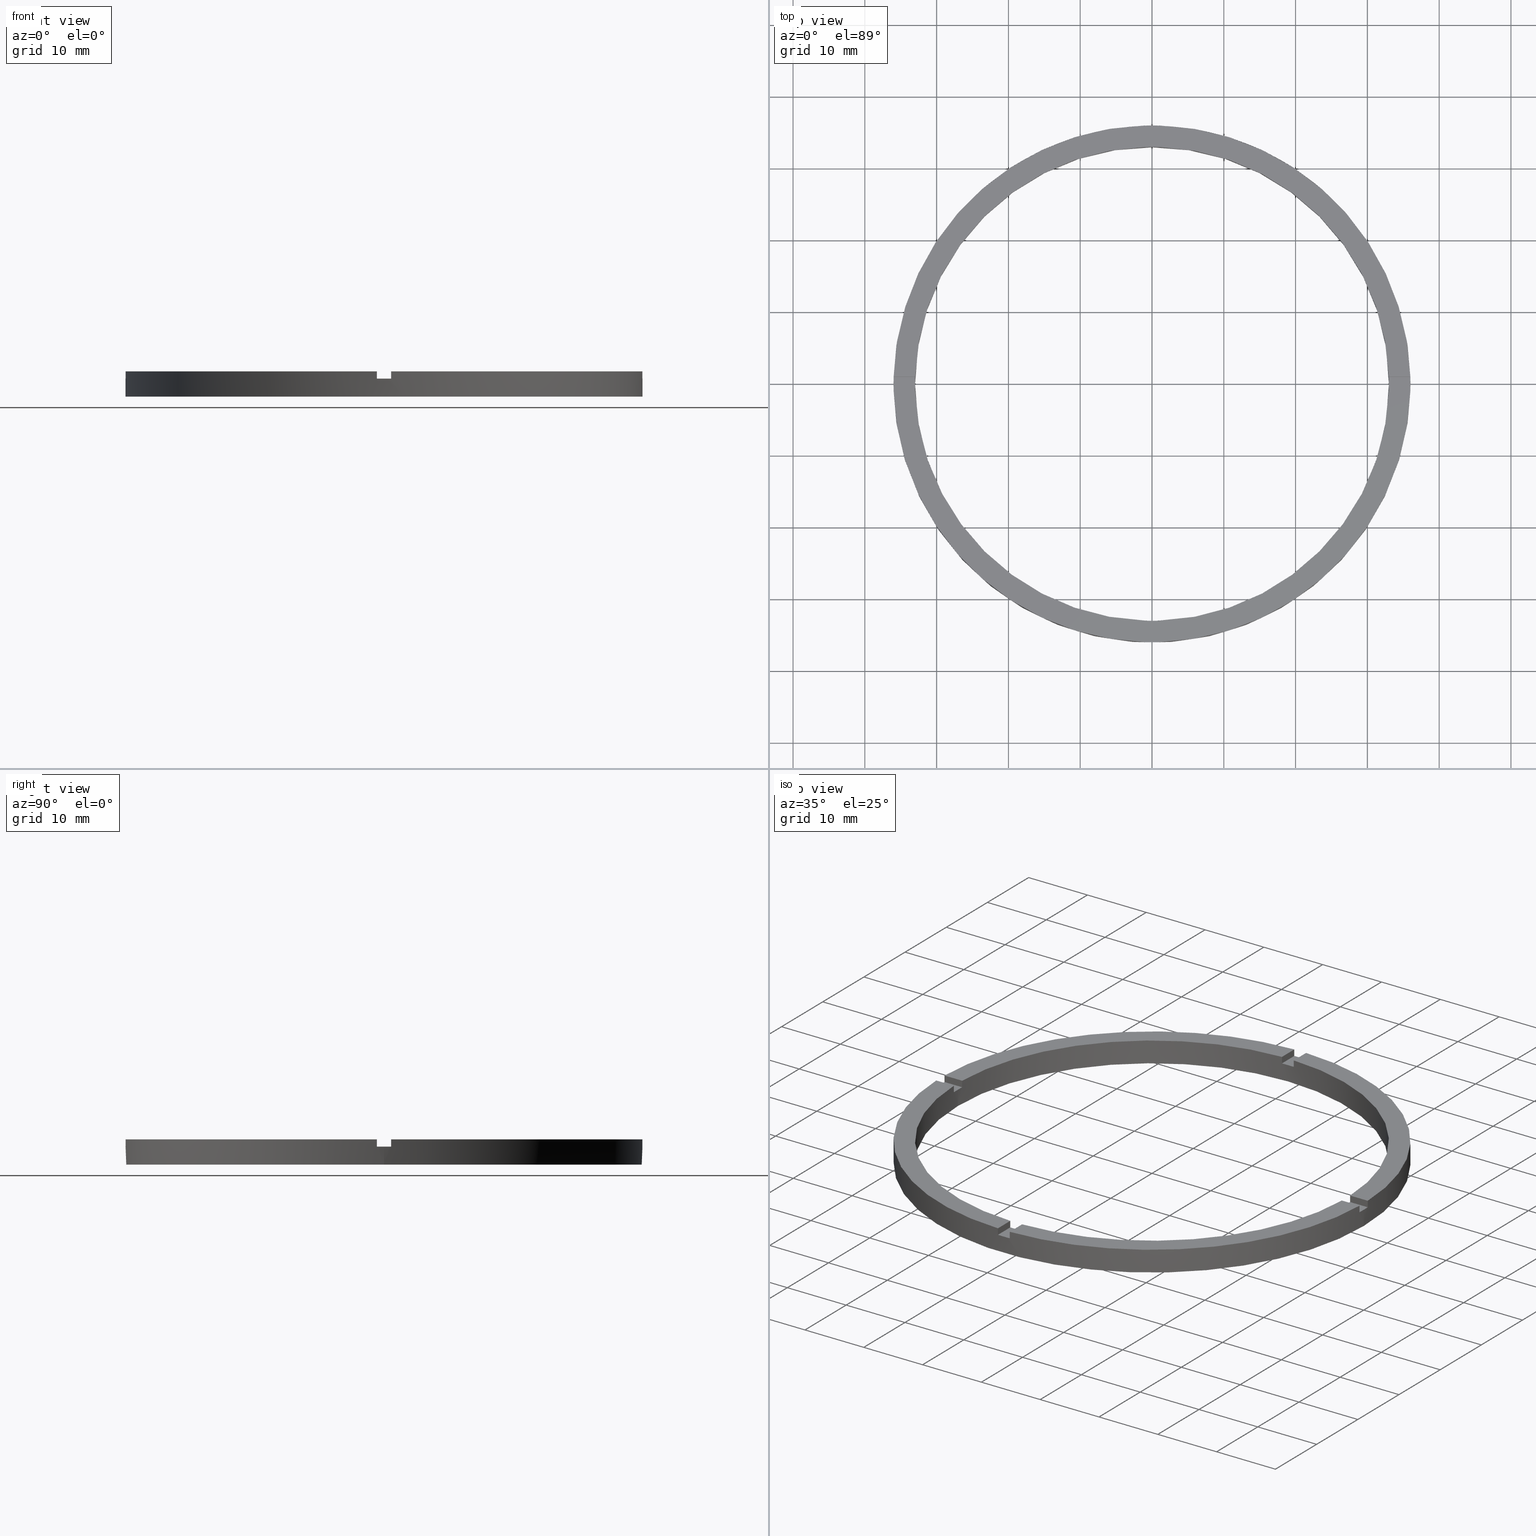
[diagram: canonical four-view strip — front | top / right | iso, engineering-drawing reading convention]
A machine part, canonical four-view strip (front | top / right | iso — engineering-drawing reading convention). The complete STEP part file that produces these views, byte-faithful:
ISO-10303-21;
HEADER;
FILE_DESCRIPTION (( 'STEP AP203' ),
    '1' );
FILE_NAME ('514149.step',
    '2024-12-26T02:42:16',
    ( 'MSI' ),
    ( '' ),
    'SwSTEP 2.0',
    'SolidWorks 2020',
    '' );
FILE_SCHEMA (( 'CONFIG_CONTROL_DESIGN' ));
ENDSEC;

DATA;
#1 = CARTESIAN_POINT ( 'NONE',  ( 0.000000000000000000, 0.000000000000000000, 2.500000000000000000 ) ) ;
#2 = CARTESIAN_POINT ( 'NONE',  ( 0.000000000000000000, 0.000000000000000000, 0.000000000000000000 ) ) ;
#3 = APPROVAL ( #214, 'δָ��' ) ;
#4 = CARTESIAN_POINT ( 'NONE',  ( 0.000000000000000000, 0.000000000000000000, 2.500000000000000000 ) ) ;
#5 = PRODUCT ( '514149', '514149', '', ( #523 ) ) ;
#6 = ADVANCED_FACE ( 'NONE', ( #406 ), #353, .T. ) ;
#7 = CARTESIAN_POINT ( 'NONE',  ( 0.000000000000000000, 0.000000000000000000, 2.500000000000000000 ) ) ;
#8 = CC_DESIGN_PERSON_AND_ORGANIZATION_ASSIGNMENT ( #73, #283, ( #157 ) ) ;
#9 = EDGE_CURVE ( 'NONE', #77, #732, #143, .T. ) ;
#10 = UNCERTAINTY_MEASURE_WITH_UNIT (LENGTH_MEASURE( 1.000000000000000082E-05 ), #735, 'distance_accuracy_value', 'NONE');
#11 = CARTESIAN_POINT ( 'NONE',  ( 0.000000000000000000, 0.000000000000000000, 2.500000000000000000 ) ) ;
#12 = EDGE_CURVE ( 'NONE', #607, #392, #662, .T. ) ;
#13 = DIRECTION ( 'NONE',  ( -1.000000000000000000, 0.000000000000000000, 0.000000000000000000 ) ) ;
#14 = AXIS2_PLACEMENT_3D ( 'NONE', #195, #520, #364 ) ;
#15 = EDGE_CURVE ( 'NONE', #132, #607, #666, .T. ) ;
#16 = VECTOR ( 'NONE', #572, 1000.000000000000000 ) ;
#17 = ORIENTED_EDGE ( 'NONE', *, *, #349, .T. ) ;
#18 = VECTOR ( 'NONE', #714, 1000.000000000000000 ) ;
#19 = DIRECTION ( 'NONE',  ( -1.000000000000000000, -6.505213034913025371E-17, -0.000000000000000000 ) ) ;
#20 = ORIENTED_EDGE ( 'NONE', *, *, #766, .T. ) ;
#21 = CIRCLE ( 'NONE', #187, 33.00000000000000000 ) ;
#22 = ORIENTED_EDGE ( 'NONE', *, *, #419, .T. ) ;
#23 = VECTOR ( 'NONE', #241, 1000.000000000000000 ) ;
#24 = ORIENTED_EDGE ( 'NONE', *, *, #15, .T. ) ;
#25 = PRODUCT_DEFINITION_SHAPE ( 'NONE', 'NONE',  #207 ) ;
#26 = LINE ( 'NONE', #672, #29 ) ;
#27 = ORIENTED_EDGE ( 'NONE', *, *, #135, .F. ) ;
#28 = ADVANCED_FACE ( 'NONE', ( #671 ), #126, .T. ) ;
#29 = VECTOR ( 'NONE', #751, 1000.000000000000000 ) ;
#30 = CARTESIAN_POINT ( 'NONE',  ( 0.000000000000000000, 0.000000000000000000, 3.500000000000000000 ) ) ;
#31 = CARTESIAN_POINT ( 'NONE',  ( -1.000000000000025091, 32.98484500494128469, 3.500000000000000000 ) ) ;
#32 = ORIENTED_EDGE ( 'NONE', *, *, #135, .T. ) ;
#33 = ORIENTED_EDGE ( 'NONE', *, *, #616, .T. ) ;
#34 = DIRECTION ( 'NONE',  ( 0.000000000000000000, 0.000000000000000000, 1.000000000000000000 ) ) ;
#35 = ORIENTED_EDGE ( 'NONE', *, *, #429, .T. ) ;
#36 = VERTEX_POINT ( 'NONE', #413 ) ;
#37 = ORIENTED_EDGE ( 'NONE', *, *, #624, .T. ) ;
#38 = DIRECTION ( 'NONE',  ( 0.000000000000000000, 0.000000000000000000, 1.000000000000000000 ) ) ;
#39 = SECURITY_CLASSIFICATION_LEVEL ( 'unclassified' ) ;
#40 = EDGE_CURVE ( 'NONE', #383, #122, #649, .T. ) ;
#41 = CIRCLE ( 'NONE', #262, 33.00000000000000000 ) ;
#42 = DIRECTION ( 'NONE',  ( 0.000000000000000000, 0.000000000000000000, 1.000000000000000000 ) ) ;
#43 = DIRECTION ( 'NONE',  ( -0.000000000000000000, -0.000000000000000000, -1.000000000000000000 ) ) ;
#44 = CARTESIAN_POINT ( 'NONE',  ( 0.000000000000000000, 0.000000000000000000, 0.000000000000000000 ) ) ;
#45 = VERTEX_POINT ( 'NONE', #705 ) ;
#46 = EDGE_LOOP ( 'NONE', ( #320, #276, #325, #119, #35, #580, #115, #684, #289, #659, #664, #285 ) ) ;
#47 = AXIS2_PLACEMENT_3D ( 'NONE', #1, #205, #309 ) ;
#48 = CARTESIAN_POINT ( 'NONE',  ( 0.000000000000000000, 0.000000000000000000, 3.500000000000000000 ) ) ;
#49 = FACE_OUTER_BOUND ( 'NONE', #682, .T. ) ;
#50 = DIRECTION ( 'NONE',  ( 1.301042606982605074E-16, -1.000000000000000000, 0.000000000000000000 ) ) ;
#51 = VECTOR ( 'NONE', #38, 1000.000000000000000 ) ;
#52 = ORIENTED_EDGE ( 'NONE', *, *, #240, .T. ) ;
#53 = EDGE_CURVE ( 'NONE', #398, #396, #130, .T. ) ;
#54 = APPROVAL_PERSON_ORGANIZATION ( #301, #3, #579 ) ;
#55 = CIRCLE ( 'NONE', #230, 33.00000000000000000 ) ;
#56 = VECTOR ( 'NONE', #558, 1000.000000000000000 ) ;
#57 = ORIENTED_EDGE ( 'NONE', *, *, #103, .F. ) ;
#58 = PERSON_AND_ORGANIZATION_ROLE ( 'design_owner' ) ;
#59 = PLANE ( 'NONE',  #495 ) ;
#60 = LINE ( 'NONE', #779, #311 ) ;
#61 = VECTOR ( 'NONE', #423, 1000.000000000000000 ) ;
#62 = PLANE ( 'NONE',  #215 ) ;
#63 = EDGE_CURVE ( 'NONE', #549, #300, #676, .T. ) ;
#64 = LINE ( 'NONE', #729, #570 ) ;
#65 = DIRECTION ( 'NONE',  ( 1.000000000000000000, 0.000000000000000000, 0.000000000000000000 ) ) ;
#66 = APPROVAL_DATE_TIME ( #350, #763 ) ;
#67 = CALENDAR_DATE ( 2024, 26, 12 ) ;
#68 = ORIENTED_EDGE ( 'NONE', *, *, #534, .F. ) ;
#69 = ORIENTED_EDGE ( 'NONE', *, *, #750, .F. ) ;
#70 = DIRECTION ( 'NONE',  ( -1.000000000000000000, 0.000000000000000000, 0.000000000000000000 ) ) ;
#71 = AXIS2_PLACEMENT_3D ( 'NONE', #265, #156, #474 ) ;
#72 = PERSON_AND_ORGANIZATION ( #674, #299 ) ;
#73 = PERSON_AND_ORGANIZATION ( #674, #299 ) ;
#74 = DIRECTION ( 'NONE',  ( 1.000000000000000000, 0.000000000000000000, -0.000000000000000000 ) ) ;
#75 = ORIENTED_EDGE ( 'NONE', *, *, #15, .F. ) ;
#76 = CC_DESIGN_PERSON_AND_ORGANIZATION_ASSIGNMENT ( #613, #530, ( #157 ) ) ;
#77 = VERTEX_POINT ( 'NONE', #257 ) ;
#78 = DATE_AND_TIME ( #90, #584 ) ;
#79 = EDGE_LOOP ( 'NONE', ( #757, #287 ) ) ;
#80 = PERSON_AND_ORGANIZATION ( #674, #299 ) ;
#81 = ADVANCED_FACE ( 'NONE', ( #425 ), #235, .F. ) ;
#82 = DIRECTION ( 'NONE',  ( -0.000000000000000000, -0.000000000000000000, -1.000000000000000000 ) ) ;
#83 = PRODUCT_RELATED_PRODUCT_CATEGORY ( 'detail', '', ( #5 ) ) ;
#84 = MANIFOLD_SOLID_BREP ( '�г�-����1', #409 ) ;
#85 = DATE_AND_TIME ( #601, #340 ) ;
#86 = ORIENTED_EDGE ( 'NONE', *, *, #189, .T. ) ;
#87 = EDGE_CURVE ( 'NONE', #77, #463, #399, .T. ) ;
#88 = PLANE ( 'NONE',  #667 ) ;
#89 = DIRECTION ( 'NONE',  ( 0.000000000000000000, 0.000000000000000000, 1.000000000000000000 ) ) ;
#90 = CALENDAR_DATE ( 2024, 26, 12 ) ;
#91 = COORDINATED_UNIVERSAL_TIME_OFFSET ( 8, 0, .AHEAD. ) ;
#92 = DATE_AND_TIME ( #67, #332 ) ;
#93 = DIRECTION ( 'NONE',  ( 0.000000000000000000, 0.000000000000000000, 1.000000000000000000 ) ) ;
#94 = DIRECTION ( 'NONE',  ( 1.000000000000000000, 1.301042606982605074E-16, 0.000000000000000000 ) ) ;
#95 = AXIS2_PLACEMENT_3D ( 'NONE', #566, #239, #721 ) ;
#96 = AXIS2_PLACEMENT_3D ( 'NONE', #745, #447, #781 ) ;
#97 = ORIENTED_EDGE ( 'NONE', *, *, #179, .T. ) ;
#98 = DIRECTION ( 'NONE',  ( 1.000000000000000000, 0.000000000000000000, 0.000000000000000000 ) ) ;
#99 = DIRECTION ( 'NONE',  ( 0.000000000000000000, 0.000000000000000000, 1.000000000000000000 ) ) ;
#100 = DIRECTION ( 'NONE',  ( 1.000000000000000000, 0.000000000000000000, 0.000000000000000000 ) ) ;
#101 = ORIENTED_EDGE ( 'NONE', *, *, #489, .F. ) ;
#102 = ORIENTED_EDGE ( 'NONE', *, *, #297, .T. ) ;
#103 = EDGE_CURVE ( 'NONE', #736, #645, #144, .T. ) ;
#104 = ORIENTED_EDGE ( 'NONE', *, *, #766, .F. ) ;
#105 = ORIENTED_EDGE ( 'NONE', *, *, #264, .T. ) ;
#106 = EDGE_LOOP ( 'NONE', ( #312, #97, #626, #57, #562, #564, #357, #206, #733, #385, #360, #104 ) ) ;
#107 = CARTESIAN_POINT ( 'NONE',  ( -1.000000000000160760, -32.98484500494128469, 3.500000000000000000 ) ) ;
#108 = VERTEX_POINT ( 'NONE', #165 ) ;
#109 = APPROVAL_STATUS ( 'not_yet_approved' ) ;
#110 = EDGE_LOOP ( 'NONE', ( #690, #477, #465, #559, #730, #86 ) ) ;
#111 = ORIENTED_EDGE ( 'NONE', *, *, #338, .F. ) ;
#112 = ORIENTED_EDGE ( 'NONE', *, *, #518, .T. ) ;
#113 = ORIENTED_EDGE ( 'NONE', *, *, #478, .F. ) ;
#114 = CARTESIAN_POINT ( 'NONE',  ( 0.000000000000000000, 0.000000000000000000, 3.500000000000000000 ) ) ;
#115 = ORIENTED_EDGE ( 'NONE', *, *, #489, .T. ) ;
#116 = APPLICATION_CONTEXT ( 'configuration controlled 3d designs of mechanical parts and assemblies' ) ;
#117 = AXIS2_PLACEMENT_3D ( 'NONE', #599, #210, #494 ) ;
#118 = DIRECTION ( 'NONE',  ( 1.000000000000000000, 0.000000000000000000, 0.000000000000000000 ) ) ;
#119 = ORIENTED_EDGE ( 'NONE', *, *, #40, .F. ) ;
#120 = DIRECTION ( 'NONE',  ( 1.000000000000000000, 0.000000000000000000, 0.000000000000000000 ) ) ;
#121 = CARTESIAN_POINT ( 'NONE',  ( 0.000000000000000000, 0.000000000000000000, 3.500000000000000000 ) ) ;
#122 = VERTEX_POINT ( 'NONE', #765 ) ;
#123 = DIRECTION ( 'NONE',  ( 1.000000000000000000, 0.000000000000000000, -0.000000000000000000 ) ) ;
#124 = CARTESIAN_POINT ( 'NONE',  ( -36.00000000000000000, 0.000000000000000000, 2.500000000000000000 ) ) ;
#125 = CC_DESIGN_PERSON_AND_ORGANIZATION_ASSIGNMENT ( #72, #435, ( #709 ) ) ;
#126 = CYLINDRICAL_SURFACE ( 'NONE', #760, 36.00000000000000000 ) ;
#127 = ORIENTED_EDGE ( 'NONE', *, *, #616, .F. ) ;
#128 = EDGE_LOOP ( 'NONE', ( #738, #213, #319, #203 ) ) ;
#129 = DIRECTION ( 'NONE',  ( -1.000000000000000000, -1.951563910473907735E-16, 0.000000000000000000 ) ) ;
#130 = CIRCLE ( 'NONE', #71, 36.00000000000000000 ) ;
#131 = ADVANCED_FACE ( 'NONE', ( #146 ), #568, .T. ) ;
#132 = VERTEX_POINT ( 'NONE', #31 ) ;
#133 = AXIS2_PLACEMENT_3D ( 'NONE', #48, #363, #120 ) ;
#134 = ORIENTED_EDGE ( 'NONE', *, *, #521, .T. ) ;
#135 = EDGE_CURVE ( 'NONE', #739, #463, #415, .T. ) ;
#136 = ORIENTED_EDGE ( 'NONE', *, *, #518, .F. ) ;
#137 = EDGE_LOOP ( 'NONE', ( #217, #687 ) ) ;
#138 = VERTEX_POINT ( 'NONE', #715 ) ;
#139 = CARTESIAN_POINT ( 'NONE',  ( -1.000000000000161648, -26.00000000000017408, 2.500000000000000000 ) ) ;
#140 = ORIENTED_EDGE ( 'NONE', *, *, #455, .F. ) ;
#141 = EDGE_LOOP ( 'NONE', ( #140, #20, #237, #113 ) ) ;
#142 = CARTESIAN_POINT ( 'NONE',  ( 0.000000000000000000, 0.000000000000000000, 2.500000000000000000 ) ) ;
#143 = LINE ( 'NONE', #159, #643 ) ;
#144 = LINE ( 'NONE', #324, #424 ) ;
#145 = AXIS2_PLACEMENT_3D ( 'NONE', #226, #209, #70 ) ;
#146 = FACE_OUTER_BOUND ( 'NONE', #281, .T. ) ;
#147 = DIRECTION ( 'NONE',  ( 0.000000000000000000, 0.000000000000000000, 1.000000000000000000 ) ) ;
#148 = EDGE_CURVE ( 'NONE', #300, #122, #154, .T. ) ;
#149 = ADVANCED_FACE ( 'NONE', ( #161 ), #62, .T. ) ;
#150 = ORIENTED_EDGE ( 'NONE', *, *, #509, .F. ) ;
#151 = ORIENTED_EDGE ( 'NONE', *, *, #390, .T. ) ;
#152 = ORIENTED_EDGE ( 'NONE', *, *, #497, .T. ) ;
#153 = DIRECTION ( 'NONE',  ( 0.000000000000000000, 0.000000000000000000, 1.000000000000000000 ) ) ;
#154 = LINE ( 'NONE', #466, #158 ) ;
#155 = CARTESIAN_POINT ( 'NONE',  ( 33.00000000000000000, 4.041334437186266200E-15, 0.000000000000000000 ) ) ;
#156 = DIRECTION ( 'NONE',  ( 0.000000000000000000, 0.000000000000000000, 1.000000000000000000 ) ) ;
#157 = PRODUCT_DEFINITION_FORMATION_WITH_SPECIFIED_SOURCE ( '�κ�', '', #5, .NOT_KNOWN. ) ;
#158 = VECTOR ( 'NONE', #511, 1000.000000000000000 ) ;
#159 = CARTESIAN_POINT ( 'NONE',  ( 0.9999999999999749090, 32.98484500494129179, 3.500000000000000000 ) ) ;
#160 = VECTOR ( 'NONE', #402, 1000.000000000000000 ) ;
#161 = FACE_OUTER_BOUND ( 'NONE', #467, .T. ) ;
#162 = AXIS2_PLACEMENT_3D ( 'NONE', #560, #89, #337 ) ;
#163 = CIRCLE ( 'NONE', #615, 36.00000000000000000 ) ;
#164 = EDGE_CURVE ( 'NONE', #645, #381, #169, .T. ) ;
#165 = CARTESIAN_POINT ( 'NONE',  ( -32.98484500494129179, 0.9999999999999733546, 2.500000000000000000 ) ) ;
#166 = CIRCLE ( 'NONE', #47, 33.00000000000000000 ) ;
#167 = ORIENTED_EDGE ( 'NONE', *, *, #408, .T. ) ;
#168 = FACE_OUTER_BOUND ( 'NONE', #359, .T. ) ;
#169 = CIRCLE ( 'NONE', #527, 33.00000000000000000 ) ;
#170 = DIRECTION ( 'NONE',  ( -1.301042606982605074E-16, 1.000000000000000000, -0.000000000000000000 ) ) ;
#171 = CIRCLE ( 'NONE', #707, 36.00000000000000000 ) ;
#172 = CARTESIAN_POINT ( 'NONE',  ( -1.000000000000025091, 25.99999999999999645, 2.500000000000000000 ) ) ;
#173 = VECTOR ( 'NONE', #600, 1000.000000000000000 ) ;
#174 = AXIS2_PLACEMENT_3D ( 'NONE', #510, #153, #630 ) ;
#175 = LINE ( 'NONE', #759, #727 ) ;
#176 = VERTEX_POINT ( 'NONE', #367 ) ;
#177 = LINE ( 'NONE', #275, #701 ) ;
#178 = CARTESIAN_POINT ( 'NONE',  ( 0.000000000000000000, 0.000000000000000000, 3.500000000000000000 ) ) ;
#179 = EDGE_CURVE ( 'NONE', #540, #381, #440, .T. ) ;
#180 = LINE ( 'NONE', #448, #437 ) ;
#181 = LINE ( 'NONE', #260, #445 ) ;
#182 = FACE_OUTER_BOUND ( 'NONE', #137, .T. ) ;
#183 = CIRCLE ( 'NONE', #288, 33.00000000000000000 ) ;
#184 = DIRECTION ( 'NONE',  ( -0.000000000000000000, -0.000000000000000000, -1.000000000000000000 ) ) ;
#185 = LINE ( 'NONE', #231, #711 ) ;
#186 = CARTESIAN_POINT ( 'NONE',  ( -26.00000000000018119, -1.000000000000025091, 2.500000000000000000 ) ) ;
#187 = AXIS2_PLACEMENT_3D ( 'NONE', #114, #193, #434 ) ;
#188 = FACE_BOUND ( 'NONE', #79, .T. ) ;
#189 = EDGE_CURVE ( 'NONE', #108, #604, #175, .T. ) ;
#190 = FACE_OUTER_BOUND ( 'NONE', #292, .T. ) ;
#191 = CARTESIAN_POINT ( 'NONE',  ( 25.99999999999998934, -1.000000000000158540, 2.500000000000000000 ) ) ;
#192 = LINE ( 'NONE', #322, #716 ) ;
#193 = DIRECTION ( 'NONE',  ( 0.000000000000000000, 0.000000000000000000, 1.000000000000000000 ) ) ;
#194 = FACE_OUTER_BOUND ( 'NONE', #46, .T. ) ;
#195 = CARTESIAN_POINT ( 'NONE',  ( 0.000000000000000000, 0.000000000000000000, 3.500000000000000000 ) ) ;
#196 = VECTOR ( 'NONE', #460, 1000.000000000000000 ) ;
#197 = VECTOR ( 'NONE', #236, 1000.000000000000000 ) ;
#198 = CIRCLE ( 'NONE', #278, 33.00000000000000000 ) ;
#199 = CARTESIAN_POINT ( 'NONE',  ( -35.98610843089316091, 0.9999999999999729106, 3.500000000000000000 ) ) ;
#200 = ORIENTED_EDGE ( 'NONE', *, *, #225, .T. ) ;
#201 = AXIS2_PLACEMENT_3D ( 'NONE', #327, #426, #742 ) ;
#202 = VERTEX_POINT ( 'NONE', #498 ) ;
#203 = ORIENTED_EDGE ( 'NONE', *, *, #429, .F. ) ;
#204 = ORIENTED_EDGE ( 'NONE', *, *, #512, .T. ) ;
#205 = DIRECTION ( 'NONE',  ( 0.000000000000000000, 0.000000000000000000, 1.000000000000000000 ) ) ;
#206 = ORIENTED_EDGE ( 'NONE', *, *, #225, .F. ) ;
#207 = PRODUCT_DEFINITION ( 'δ֪', '', #157, #772 ) ;
#208 = ORIENTED_EDGE ( 'NONE', *, *, #726, .F. ) ;
#209 = DIRECTION ( 'NONE',  ( -0.000000000000000000, -0.000000000000000000, -1.000000000000000000 ) ) ;
#210 = DIRECTION ( 'NONE',  ( 1.951563910473907735E-16, -1.000000000000000000, 0.000000000000000000 ) ) ;
#211 = ORIENTED_EDGE ( 'NONE', *, *, #597, .T. ) ;
#212 = DIRECTION ( 'NONE',  ( -0.000000000000000000, 0.000000000000000000, 1.000000000000000000 ) ) ;
#213 = ORIENTED_EDGE ( 'NONE', *, *, #578, .T. ) ;
#214 = APPROVAL_STATUS ( 'not_yet_approved' ) ;
#215 = AXIS2_PLACEMENT_3D ( 'NONE', #439, #591, #123 ) ;
#216 = CC_DESIGN_DATE_AND_TIME_ASSIGNMENT ( #85, #356, ( #709 ) ) ;
#217 = ORIENTED_EDGE ( 'NONE', *, *, #250, .F. ) ;
#218 = EDGE_CURVE ( 'NONE', #176, #551, #713, .T. ) ;
#219 = VERTEX_POINT ( 'NONE', #699 ) ;
#220 = DIRECTION ( 'NONE',  ( -1.000000000000000000, -1.951563910473907735E-16, 0.000000000000000000 ) ) ;
#221 = CARTESIAN_POINT ( 'NONE',  ( 0.000000000000000000, 0.000000000000000000, 2.500000000000000000 ) ) ;
#222 = ADVANCED_FACE ( 'NONE', ( #168 ), #677, .T. ) ;
#223 = CARTESIAN_POINT ( 'NONE',  ( 32.98484500494128469, -1.000000000000158096, 3.500000000000000000 ) ) ;
#224 = AXIS2_PLACEMENT_3D ( 'NONE', #397, #238, #98 ) ;
#225 = EDGE_CURVE ( 'NONE', #660, #556, #457, .T. ) ;
#226 = CARTESIAN_POINT ( 'NONE',  ( 0.000000000000000000, 0.000000000000000000, 3.500000000000000000 ) ) ;
#227 = CARTESIAN_POINT ( 'NONE',  ( 32.98484500494129179, 0.9999999999998419042, 3.500000000000000000 ) ) ;
#228 = CARTESIAN_POINT ( 'NONE',  ( -1.000000000000160316, -35.98610843089315381, 3.500000000000000000 ) ) ;
#229 = ADVANCED_FACE ( 'NONE', ( #695 ), #430, .F. ) ;
#230 = AXIS2_PLACEMENT_3D ( 'NONE', #270, #34, #100 ) ;
#231 = CARTESIAN_POINT ( 'NONE',  ( 35.98610843089315381, -1.000000000000157874, 3.500000000000000000 ) ) ;
#232 = EDGE_CURVE ( 'NONE', #660, #294, #694, .T. ) ;
#233 = CARTESIAN_POINT ( 'NONE',  ( -26.00000000000018119, 0.9999999999999749090, 3.500000000000000000 ) ) ;
#234 = CARTESIAN_POINT ( 'NONE',  ( 0.9999999999998393507, -32.98484500494129179, 3.500000000000000000 ) ) ;
#235 = PLANE ( 'NONE',  #505 ) ;
#236 = DIRECTION ( 'NONE',  ( 1.000000000000000000, 6.505213034913025371E-17, 0.000000000000000000 ) ) ;
#237 = ORIENTED_EDGE ( 'NONE', *, *, #148, .T. ) ;
#238 = DIRECTION ( 'NONE',  ( 0.000000000000000000, 0.000000000000000000, 1.000000000000000000 ) ) ;
#239 = DIRECTION ( 'NONE',  ( 0.000000000000000000, 0.000000000000000000, 1.000000000000000000 ) ) ;
#240 = EDGE_CURVE ( 'NONE', #294, #202, #691, .T. ) ;
#241 = DIRECTION ( 'NONE',  ( 1.000000000000000000, 1.951563910473907735E-16, -0.000000000000000000 ) ) ;
#242 = CARTESIAN_POINT ( 'NONE',  ( -1.000000000000160760, -32.98484500494128469, 2.500000000000000000 ) ) ;
#243 = APPROVAL_STATUS ( 'not_yet_approved' ) ;
#244 = AXIS2_PLACEMENT_3D ( 'NONE', #253, #314, #749 ) ;
#245 = EDGE_CURVE ( 'NONE', #631, #176, #171, .T. ) ;
#246 = CARTESIAN_POINT ( 'NONE',  ( 32.98484500494129179, 0.9999999999998419042, 3.500000000000000000 ) ) ;
#247 =( NAMED_UNIT ( * ) SI_UNIT ( $, .STERADIAN. ) SOLID_ANGLE_UNIT ( ) );
#248 = CARTESIAN_POINT ( 'NONE',  ( 0.000000000000000000, 0.000000000000000000, 0.000000000000000000 ) ) ;
#249 = PLANE ( 'NONE',  #345 ) ;
#250 = EDGE_CURVE ( 'NONE', #373, #737, #163, .T. ) ;
#251 = CARTESIAN_POINT ( 'NONE',  ( 0.000000000000000000, 0.000000000000000000, 0.000000000000000000 ) ) ;
#252 = DIRECTION ( 'NONE',  ( 0.000000000000000000, 0.000000000000000000, 1.000000000000000000 ) ) ;
#253 = CARTESIAN_POINT ( 'NONE',  ( 0.9999999999999749090, 25.99999999999999645, 2.500000000000000000 ) ) ;
#254 = CARTESIAN_POINT ( 'NONE',  ( 0.000000000000000000, 0.000000000000000000, 3.500000000000000000 ) ) ;
#255 = CARTESIAN_POINT ( 'NONE',  ( -1.000000000000025091, 32.98484500494128469, 3.500000000000000000 ) ) ;
#256 = ADVANCED_FACE ( 'NONE', ( #449 ), #441, .F. ) ;
#257 = CARTESIAN_POINT ( 'NONE',  ( 0.9999999999999749090, 32.98484500494129179, 2.500000000000000000 ) ) ;
#258 = APPROVAL ( #109, 'δָ��' ) ;
#259 = EDGE_CURVE ( 'NONE', #660, #219, #198, .T. ) ;
#260 = CARTESIAN_POINT ( 'NONE',  ( 0.9999999999998397948, -35.98610843089316091, 3.500000000000000000 ) ) ;
#261 = ADVANCED_FACE ( 'NONE', ( #453 ), #368, .F. ) ;
#262 = AXIS2_PLACEMENT_3D ( 'NONE', #178, #268, #644 ) ;
#263 = DIRECTION ( 'NONE',  ( 0.000000000000000000, 0.000000000000000000, 1.000000000000000000 ) ) ;
#264 = EDGE_CURVE ( 'NONE', #538, #45, #177, .T. ) ;
#265 = CARTESIAN_POINT ( 'NONE',  ( 0.000000000000000000, 0.000000000000000000, 2.500000000000000000 ) ) ;
#266 = ADVANCED_FACE ( 'NONE', ( #697 ), #529, .T. ) ;
#267 = CARTESIAN_POINT ( 'NONE',  ( 25.99999999999998934, -1.000000000000158540, 2.500000000000000000 ) ) ;
#268 = DIRECTION ( 'NONE',  ( 0.000000000000000000, 0.000000000000000000, 1.000000000000000000 ) ) ;
#269 = DIRECTION ( 'NONE',  ( 0.000000000000000000, 0.000000000000000000, 1.000000000000000000 ) ) ;
#270 = CARTESIAN_POINT ( 'NONE',  ( 0.000000000000000000, 0.000000000000000000, 2.500000000000000000 ) ) ;
#271 =( NAMED_UNIT ( * ) PLANE_ANGLE_UNIT ( ) SI_UNIT ( $, .RADIAN. ) );
#272 = CC_DESIGN_DATE_AND_TIME_ASSIGNMENT ( #78, #484, ( #207 ) ) ;
#273 = LINE ( 'NONE', #411, #541 ) ;
#274 = CIRCLE ( 'NONE', #133, 36.00000000000000000 ) ;
#275 = CARTESIAN_POINT ( 'NONE',  ( 0.9999999999999749090, 35.98610843089316091, 3.500000000000000000 ) ) ;
#276 = ORIENTED_EDGE ( 'NONE', *, *, #419, .F. ) ;
#277 = LINE ( 'NONE', #488, #23 ) ;
#278 = AXIS2_PLACEMENT_3D ( 'NONE', #747, #685, #524 ) ;
#279 = CARTESIAN_POINT ( 'NONE',  ( -32.98484500494128469, -1.000000000000026645, 3.500000000000000000 ) ) ;
#280 = EDGE_CURVE ( 'NONE', #138, #540, #454, .T. ) ;
#281 = EDGE_LOOP ( 'NONE', ( #111, #633, #414, #339 ) ) ;
#282 = FACE_OUTER_BOUND ( 'NONE', #652, .T. ) ;
#283 = PERSON_AND_ORGANIZATION_ROLE ( 'design_supplier' ) ;
#284 = LINE ( 'NONE', #522, #536 ) ;
#285 = ORIENTED_EDGE ( 'NONE', *, *, #250, .T. ) ;
#286 = CARTESIAN_POINT ( 'NONE',  ( -1.000000000000025091, 35.98610843089315381, 3.500000000000000000 ) ) ;
#287 = ORIENTED_EDGE ( 'NONE', *, *, #395, .T. ) ;
#288 = AXIS2_PLACEMENT_3D ( 'NONE', #248, #365, #531 ) ;
#289 = ORIENTED_EDGE ( 'NONE', *, *, #534, .T. ) ;
#290 = CARTESIAN_POINT ( 'NONE',  ( 0.000000000000000000, 0.000000000000000000, 0.000000000000000000 ) ) ;
#291 = ORIENTED_EDGE ( 'NONE', *, *, #40, .T. ) ;
#292 = EDGE_LOOP ( 'NONE', ( #52, #102, #336, #618 ) ) ;
#293 = DIRECTION ( 'NONE',  ( -0.000000000000000000, -0.000000000000000000, -1.000000000000000000 ) ) ;
#294 = VERTEX_POINT ( 'NONE', #532 ) ;
#295 = ORIENTED_EDGE ( 'NONE', *, *, #326, .F. ) ;
#296 = PERSON_AND_ORGANIZATION_ROLE ( 'creator' ) ;
#297 = EDGE_CURVE ( 'NONE', #202, #219, #433, .T. ) ;
#298 = CARTESIAN_POINT ( 'NONE',  ( 33.00000000000000000, 4.041334437186266200E-15, 3.500000000000000000 ) ) ;
#299 = ORGANIZATION ( 'δָ��', 'δָ��', '' ) ;
#300 = VERTEX_POINT ( 'NONE', #223 ) ;
#301 = PERSON_AND_ORGANIZATION ( #674, #299 ) ;
#302 = LOCAL_TIME ( 10, 42, 16.00000000000000000, #569 ) ;
#303 = DIRECTION ( 'NONE',  ( 0.000000000000000000, -0.000000000000000000, 1.000000000000000000 ) ) ;
#304 = DIRECTION ( 'NONE',  ( 1.000000000000000000, 0.000000000000000000, 0.000000000000000000 ) ) ;
#305 = ADVANCED_FACE ( 'NONE', ( #190 ), #502, .T. ) ;
#306 = VECTOR ( 'NONE', #594, 1000.000000000000000 ) ;
#307 = CALENDAR_DATE ( 2024, 26, 12 ) ;
#308 = ORIENTED_EDGE ( 'NONE', *, *, #328, .T. ) ;
#309 = DIRECTION ( 'NONE',  ( 1.000000000000000000, 0.000000000000000000, 0.000000000000000000 ) ) ;
#310 = AXIS2_PLACEMENT_3D ( 'NONE', #400, #99, #480 ) ;
#311 = VECTOR ( 'NONE', #43, 1000.000000000000000 ) ;
#312 = ORIENTED_EDGE ( 'NONE', *, *, #280, .T. ) ;
#313 = LINE ( 'NONE', #514, #51 ) ;
#314 = DIRECTION ( 'NONE',  ( 1.000000000000000000, -0.000000000000000000, 0.000000000000000000 ) ) ;
#315 = CIRCLE ( 'NONE', #629, 36.00000000000000000 ) ;
#316 = DIRECTION ( 'NONE',  ( 0.000000000000000000, 0.000000000000000000, 1.000000000000000000 ) ) ;
#317 = ADVANCED_FACE ( 'NONE', ( #719 ), #503, .F. ) ;
#318 = FACE_OUTER_BOUND ( 'NONE', #394, .T. ) ;
#319 = ORIENTED_EDGE ( 'NONE', *, *, #297, .F. ) ;
#320 = ORIENTED_EDGE ( 'NONE', *, *, #655, .F. ) ;
#321 = CC_DESIGN_APPROVAL ( #763, ( #157 ) ) ;
#322 = CARTESIAN_POINT ( 'NONE',  ( -1.000000000000160316, -35.98610843089315381, 3.500000000000000000 ) ) ;
#323 = APPROVAL_DATE_TIME ( #609, #3 ) ;
#324 = CARTESIAN_POINT ( 'NONE',  ( -33.00000000000000000, 0.000000000000000000, 3.500000000000000000 ) ) ;
#325 = ORIENTED_EDGE ( 'NONE', *, *, #478, .T. ) ;
#326 = EDGE_CURVE ( 'NONE', #556, #420, #431, .T. ) ;
#327 = CARTESIAN_POINT ( 'NONE',  ( 0.000000000000000000, 0.000000000000000000, 2.500000000000000000 ) ) ;
#328 = EDGE_CURVE ( 'NONE', #669, #462, #180, .T. ) ;
#329 = ADVANCED_FACE ( 'NONE', ( #182, #188 ), #756, .F. ) ;
#330 = COORDINATED_UNIVERSAL_TIME_OFFSET ( 8, 0, .AHEAD. ) ;
#331 = ORIENTED_EDGE ( 'NONE', *, *, #726, .T. ) ;
#332 = LOCAL_TIME ( 10, 42, 16.00000000000000000, #330 ) ;
#333 = CARTESIAN_POINT ( 'NONE',  ( 0.9999999999999749090, 35.98610843089316091, 2.500000000000000000 ) ) ;
#334 = AXIS2_PLACEMENT_3D ( 'NONE', #472, #639, #519 ) ;
#335 = LINE ( 'NONE', #654, #627 ) ;
#336 = ORIENTED_EDGE ( 'NONE', *, *, #259, .F. ) ;
#337 = DIRECTION ( 'NONE',  ( 1.000000000000000000, 0.000000000000000000, 0.000000000000000000 ) ) ;
#338 = EDGE_CURVE ( 'NONE', #732, #45, #689, .T. ) ;
#339 = ORIENTED_EDGE ( 'NONE', *, *, #670, .T. ) ;
#340 = LOCAL_TIME ( 10, 42, 16.00000000000000000, #91 ) ;
#341 = APPROVAL_PERSON_ORGANIZATION ( #80, #258, #526 ) ;
#342 = ORIENTED_EDGE ( 'NONE', *, *, #554, .T. ) ;
#343 = PERSON_AND_ORGANIZATION ( #674, #299 ) ;
#344 = ORIENTED_EDGE ( 'NONE', *, *, #379, .T. ) ;
#345 = AXIS2_PLACEMENT_3D ( 'NONE', #443, #370, #129 ) ;
#346 = LOCAL_TIME ( 10, 42, 16.00000000000000000, #586 ) ;
#347 = CARTESIAN_POINT ( 'NONE',  ( 36.00000000000000000, 4.408728476930470856E-15, 2.500000000000000000 ) ) ;
#348 = ORIENTED_EDGE ( 'NONE', *, *, #723, .T. ) ;
#349 = EDGE_CURVE ( 'NONE', #132, #463, #446, .T. ) ;
#350 = DATE_AND_TIME ( #598, #346 ) ;
#351 = SHAPE_DEFINITION_REPRESENTATION ( #25, #537 ) ;
#352 = ORIENTED_EDGE ( 'NONE', *, *, #734, .F. ) ;
#353 = PLANE ( 'NONE',  #201 ) ;
#354 = CARTESIAN_POINT ( 'NONE',  ( 35.98610843089316091, 0.9999999999998421263, 3.500000000000000000 ) ) ;
#355 = ORIENTED_EDGE ( 'NONE', *, *, #245, .T. ) ;
#356 = DATE_TIME_ROLE ( 'classification_date' ) ;
#357 = ORIENTED_EDGE ( 'NONE', *, *, #710, .T. ) ;
#358 = VERTEX_POINT ( 'NONE', #686 ) ;
#359 = EDGE_LOOP ( 'NONE', ( #380, #32, #403, #112 ) ) ;
#360 = ORIENTED_EDGE ( 'NONE', *, *, #63, .T. ) ;
#361 = EDGE_LOOP ( 'NONE', ( #469, #200, #708, #101 ) ) ;
#362 = AXIS2_PLACEMENT_3D ( 'NONE', #640, #724, #769 ) ;
#363 = DIRECTION ( 'NONE',  ( 0.000000000000000000, 0.000000000000000000, 1.000000000000000000 ) ) ;
#364 = DIRECTION ( 'NONE',  ( 1.000000000000000000, 0.000000000000000000, 0.000000000000000000 ) ) ;
#365 = DIRECTION ( 'NONE',  ( 0.000000000000000000, 0.000000000000000000, 1.000000000000000000 ) ) ;
#366 = ORIENTED_EDGE ( 'NONE', *, *, #670, .F. ) ;
#367 = CARTESIAN_POINT ( 'NONE',  ( 35.98610843089316091, 0.9999999999998421263, 2.500000000000000000 ) ) ;
#368 = PLANE ( 'NONE',  #696 ) ;
#369 = DIRECTION ( 'NONE',  ( -0.000000000000000000, -0.000000000000000000, -1.000000000000000000 ) ) ;
#370 = DIRECTION ( 'NONE',  ( -1.951563910473907735E-16, 1.000000000000000000, 0.000000000000000000 ) ) ;
#371 = ORIENTED_EDGE ( 'NONE', *, *, #395, .F. ) ;
#372 = LINE ( 'NONE', #479, #623 ) ;
#373 = VERTEX_POINT ( 'NONE', #754 ) ;
#374 = ORIENTED_EDGE ( 'NONE', *, *, #767, .F. ) ;
#375 = DIRECTION ( 'NONE',  ( 1.301042606982605074E-16, -1.000000000000000000, 0.000000000000000000 ) ) ;
#376 = EDGE_CURVE ( 'NONE', #604, #398, #706, .T. ) ;
#377 = DIRECTION ( 'NONE',  ( 0.000000000000000000, 1.000000000000000000, 0.000000000000000000 ) ) ;
#378 = ADVANCED_FACE ( 'NONE', ( #704 ), #88, .F. ) ;
#379 = EDGE_CURVE ( 'NONE', #680, #551, #451, .T. ) ;
#380 = ORIENTED_EDGE ( 'NONE', *, *, #734, .T. ) ;
#381 = VERTEX_POINT ( 'NONE', #155 ) ;
#382 = DIRECTION ( 'NONE',  ( 0.000000000000000000, -0.000000000000000000, 1.000000000000000000 ) ) ;
#383 = VERTEX_POINT ( 'NONE', #744 ) ;
#384 = VERTEX_POINT ( 'NONE', #436 ) ;
#385 = ORIENTED_EDGE ( 'NONE', *, *, #578, .F. ) ;
#386 = DIRECTION ( 'NONE',  ( -1.000000000000000000, -6.505213034913025371E-17, -0.000000000000000000 ) ) ;
#387 = ADVANCED_FACE ( 'NONE', ( #442 ), #59, .F. ) ;
#388 = AXIS2_PLACEMENT_3D ( 'NONE', #121, #665, #595 ) ;
#389 = DIRECTION ( 'NONE',  ( 0.000000000000000000, 0.000000000000000000, 1.000000000000000000 ) ) ;
#390 = EDGE_CURVE ( 'NONE', #358, #420, #720, .T. ) ;
#391 = DIRECTION ( 'NONE',  ( 0.000000000000000000, 0.000000000000000000, 1.000000000000000000 ) ) ;
#392 = VERTEX_POINT ( 'NONE', #199 ) ;
#393 = CARTESIAN_POINT ( 'NONE',  ( 0.000000000000000000, 0.000000000000000000, 3.500000000000000000 ) ) ;
#394 = EDGE_LOOP ( 'NONE', ( #493, #33, #486, #37, #641, #675, #550, #24, #668, #167, #574, #371 ) ) ;
#395 = EDGE_CURVE ( 'NONE', #381, #645, #183, .T. ) ;
#396 = VERTEX_POINT ( 'NONE', #673 ) ;
#397 = CARTESIAN_POINT ( 'NONE',  ( 0.000000000000000000, 0.000000000000000000, 0.000000000000000000 ) ) ;
#398 = VERTEX_POINT ( 'NONE', #124 ) ;
#399 = CIRCLE ( 'NONE', #782, 33.00000000000000000 ) ;
#400 = CARTESIAN_POINT ( 'NONE',  ( 0.000000000000000000, 0.000000000000000000, 3.500000000000000000 ) ) ;
#401 = ORIENTED_EDGE ( 'NONE', *, *, #376, .F. ) ;
#402 = DIRECTION ( 'NONE',  ( -1.000000000000000000, -1.951563910473907735E-16, 0.000000000000000000 ) ) ;
#403 = ORIENTED_EDGE ( 'NONE', *, *, #87, .F. ) ;
#404 = DIRECTION ( 'NONE',  ( 0.000000000000000000, 0.000000000000000000, 1.000000000000000000 ) ) ;
#405 = ORIENTED_EDGE ( 'NONE', *, *, #148, .F. ) ;
#406 = FACE_OUTER_BOUND ( 'NONE', #470, .T. ) ;
#407 = DIRECTION ( 'NONE',  ( 1.000000000000000000, 0.000000000000000000, 0.000000000000000000 ) ) ;
#408 = EDGE_CURVE ( 'NONE', #108, #736, #166, .T. ) ;
#409 = CLOSED_SHELL ( 'NONE', ( #229, #28, #504, #131, #266, #149, #329, #506, #758, #256, #761, #452, #81, #387, #305, #712, #261, #6, #378, #317, #222 ) ) ;
#410 = EDGE_LOOP ( 'NONE', ( #136, #602, #619, #412 ) ) ;
#411 = CARTESIAN_POINT ( 'NONE',  ( 0.9999999999998393507, -32.98484500494129179, 3.500000000000000000 ) ) ;
#412 = ORIENTED_EDGE ( 'NONE', *, *, #264, .F. ) ;
#413 = CARTESIAN_POINT ( 'NONE',  ( 35.98610843089316091, 0.9999999999998421263, 3.500000000000000000 ) ) ;
#414 = ORIENTED_EDGE ( 'NONE', *, *, #512, .F. ) ;
#415 = LINE ( 'NONE', #172, #417 ) ;
#416 = PLANE ( 'NONE',  #174 ) ;
#417 = VECTOR ( 'NONE', #552, 1000.000000000000000 ) ;
#418 = ORIENTED_EDGE ( 'NONE', *, *, #632, .F. ) ;
#419 = EDGE_CURVE ( 'NONE', #384, #631, #702, .T. ) ;
#420 = VERTEX_POINT ( 'NONE', #228 ) ;
#421 = DIRECTION ( 'NONE',  ( 1.000000000000000000, 0.000000000000000000, -0.000000000000000000 ) ) ;
#422 = ORIENTED_EDGE ( 'NONE', *, *, #245, .F. ) ;
#423 = DIRECTION ( 'NONE',  ( 0.000000000000000000, 0.000000000000000000, 1.000000000000000000 ) ) ;
#424 = VECTOR ( 'NONE', #717, 1000.000000000000000 ) ;
#425 = FACE_OUTER_BOUND ( 'NONE', #128, .T. ) ;
#426 = DIRECTION ( 'NONE',  ( 0.000000000000000000, 0.000000000000000000, 1.000000000000000000 ) ) ;
#427 = VECTOR ( 'NONE', #389, 1000.000000000000000 ) ;
#428 = CYLINDRICAL_SURFACE ( 'NONE', #334, 36.00000000000000000 ) ;
#429 = EDGE_CURVE ( 'NONE', #383, #202, #181, .T. ) ;
#430 = CYLINDRICAL_SURFACE ( 'NONE', #145, 33.00000000000000000 ) ;
#431 = LINE ( 'NONE', #545, #173 ) ;
#432 = DIRECTION ( 'NONE',  ( 0.000000000000000000, 0.000000000000000000, 1.000000000000000000 ) ) ;
#433 = LINE ( 'NONE', #753, #459 ) ;
#434 = DIRECTION ( 'NONE',  ( 1.000000000000000000, 0.000000000000000000, 0.000000000000000000 ) ) ;
#435 = PERSON_AND_ORGANIZATION_ROLE ( 'classification_officer' ) ;
#436 = CARTESIAN_POINT ( 'NONE',  ( 35.98610843089315381, -1.000000000000157874, 2.500000000000000000 ) ) ;
#437 = VECTOR ( 'NONE', #369, 1000.000000000000000 ) ;
#438 = VECTOR ( 'NONE', #375, 1000.000000000000000 ) ;
#439 = CARTESIAN_POINT ( 'NONE',  ( 0.000000000000000000, 0.000000000000000000, 3.500000000000000000 ) ) ;
#440 = LINE ( 'NONE', #298, #196 ) ;
#441 = PLANE ( 'NONE',  #117 ) ;
#442 = FACE_OUTER_BOUND ( 'NONE', #361, .T. ) ;
#443 = CARTESIAN_POINT ( 'NONE',  ( -26.00000000000018119, 0.9999999999999749090, 2.500000000000000000 ) ) ;
#444 = LINE ( 'NONE', #267, #197 ) ;
#445 = VECTOR ( 'NONE', #82, 1000.000000000000000 ) ;
#446 = LINE ( 'NONE', #255, #725 ) ;
#447 = DIRECTION ( 'NONE',  ( 0.000000000000000000, 0.000000000000000000, 1.000000000000000000 ) ) ;
#448 = CARTESIAN_POINT ( 'NONE',  ( -32.98484500494128469, -1.000000000000026645, 3.500000000000000000 ) ) ;
#449 = FACE_OUTER_BOUND ( 'NONE', #475, .T. ) ;
#450 = ORIENTED_EDGE ( 'NONE', *, *, #12, .T. ) ;
#451 = LINE ( 'NONE', #227, #700 ) ;
#452 = ADVANCED_FACE ( 'NONE', ( #703 ), #416, .T. ) ;
#453 = FACE_OUTER_BOUND ( 'NONE', #141, .T. ) ;
#454 = CIRCLE ( 'NONE', #96, 33.00000000000000000 ) ;
#455 = EDGE_CURVE ( 'NONE', #138, #384, #444, .T. ) ;
#456 = CARTESIAN_POINT ( 'NONE',  ( 0.000000000000000000, 0.000000000000000000, 2.500000000000000000 ) ) ;
#457 = LINE ( 'NONE', #611, #427 ) ;
#458 = FACE_OUTER_BOUND ( 'NONE', #622, .T. ) ;
#459 = VECTOR ( 'NONE', #692, 1000.000000000000000 ) ;
#460 = DIRECTION ( 'NONE',  ( -0.000000000000000000, -0.000000000000000000, -1.000000000000000000 ) ) ;
#461 = CARTESIAN_POINT ( 'NONE',  ( -1.000000000000025091, 25.99999999999999645, 2.500000000000000000 ) ) ;
#462 = VERTEX_POINT ( 'NONE', #776 ) ;
#463 = VERTEX_POINT ( 'NONE', #770 ) ;
#464 = AXIS2_PLACEMENT_3D ( 'NONE', #661, #252, #592 ) ;
#465 = ORIENTED_EDGE ( 'NONE', *, *, #750, .T. ) ;
#466 = CARTESIAN_POINT ( 'NONE',  ( 25.99999999999998934, -1.000000000000158540, 3.500000000000000000 ) ) ;
#467 = EDGE_LOOP ( 'NONE', ( #295, #473, #208, #151 ) ) ;
#468 = DIRECTION ( 'NONE',  ( 1.000000000000000000, 0.000000000000000000, 0.000000000000000000 ) ) ;
#469 = ORIENTED_EDGE ( 'NONE', *, *, #232, .F. ) ;
#470 = EDGE_LOOP ( 'NONE', ( #22, #355, #547, #127, #637, #500 ) ) ;
#471 = ORIENTED_EDGE ( 'NONE', *, *, #63, .F. ) ;
#472 = CARTESIAN_POINT ( 'NONE',  ( 0.000000000000000000, 0.000000000000000000, 3.500000000000000000 ) ) ;
#473 = ORIENTED_EDGE ( 'NONE', *, *, #710, .F. ) ;
#474 = DIRECTION ( 'NONE',  ( 1.000000000000000000, 0.000000000000000000, 0.000000000000000000 ) ) ;
#475 = EDGE_LOOP ( 'NONE', ( #331, #308, #69, #68 ) ) ;
#476 = AXIS2_PLACEMENT_3D ( 'NONE', #491, #663, #743 ) ;
#477 = ORIENTED_EDGE ( 'NONE', *, *, #53, .T. ) ;
#478 = EDGE_CURVE ( 'NONE', #384, #122, #185, .T. ) ;
#479 = CARTESIAN_POINT ( 'NONE',  ( 0.9999999999998384625, -26.00000000000017408, 3.500000000000000000 ) ) ;
#480 = DIRECTION ( 'NONE',  ( 1.000000000000000000, 0.000000000000000000, 0.000000000000000000 ) ) ;
#481 = CARTESIAN_POINT ( 'NONE',  ( -35.98610843089315381, -1.000000000000027089, 3.500000000000000000 ) ) ;
#482 = AXIS2_PLACEMENT_3D ( 'NONE', #393, #316, #468 ) ;
#483 = PLANE ( 'NONE',  #771 ) ;
#484 = DATE_TIME_ROLE ( 'creation_date' ) ;
#485 = CC_DESIGN_APPROVAL ( #3, ( #207 ) ) ;
#486 = ORIENTED_EDGE ( 'NONE', *, *, #379, .F. ) ;
#487 = CARTESIAN_POINT ( 'NONE',  ( 32.98484500494129179, 0.9999999999998419042, 2.500000000000000000 ) ) ;
#488 = CARTESIAN_POINT ( 'NONE',  ( -26.00000000000018119, -1.000000000000025091, 3.500000000000000000 ) ) ;
#489 = EDGE_CURVE ( 'NONE', #294, #420, #192, .T. ) ;
#490 = DIRECTION ( 'NONE',  ( 1.000000000000000000, 0.000000000000000000, 0.000000000000000000 ) ) ;
#491 = CARTESIAN_POINT ( 'NONE',  ( 25.99999999999998934, 0.9999999999998414602, 2.500000000000000000 ) ) ;
#492 = APPLICATION_PROTOCOL_DEFINITION ( 'international standard', 'config_control_design', 1994, #746 ) ;
#493 = ORIENTED_EDGE ( 'NONE', *, *, #179, .F. ) ;
#494 = DIRECTION ( 'NONE',  ( 1.000000000000000000, 1.951563910473907735E-16, 0.000000000000000000 ) ) ;
#495 = AXIS2_PLACEMENT_3D ( 'NONE', #780, #589, #50 ) ;
#496 = DIRECTION ( 'NONE',  ( -1.000000000000000000, 0.000000000000000000, 0.000000000000000000 ) ) ;
#497 = EDGE_CURVE ( 'NONE', #737, #373, #718, .T. ) ;
#498 = CARTESIAN_POINT ( 'NONE',  ( 0.9999999999998397948, -35.98610843089316091, 2.500000000000000000 ) ) ;
#499 = DIRECTION ( 'NONE',  ( 0.000000000000000000, 0.000000000000000000, 1.000000000000000000 ) ) ;
#500 = ORIENTED_EDGE ( 'NONE', *, *, #455, .T. ) ;
#501 = DIRECTION ( 'NONE',  ( -0.000000000000000000, 0.000000000000000000, 1.000000000000000000 ) ) ;
#502 = PLANE ( 'NONE',  #544 ) ;
#503 = PLANE ( 'NONE',  #244 ) ;
#504 = ADVANCED_FACE ( 'NONE', ( #458 ), #483, .T. ) ;
#505 = AXIS2_PLACEMENT_3D ( 'NONE', #515, #94, #508 ) ;
#506 = ADVANCED_FACE ( 'NONE', ( #194 ), #428, .T. ) ;
#507 = DIRECTION ( 'NONE',  ( 1.000000000000000000, 0.000000000000000000, 0.000000000000000000 ) ) ;
#508 = DIRECTION ( 'NONE',  ( -1.301042606982605074E-16, 1.000000000000000000, 0.000000000000000000 ) ) ;
#509 = EDGE_CURVE ( 'NONE', #383, #549, #372, .T. ) ;
#510 = CARTESIAN_POINT ( 'NONE',  ( 0.000000000000000000, 0.000000000000000000, 2.500000000000000000 ) ) ;
#511 = DIRECTION ( 'NONE',  ( 1.000000000000000000, 6.505213034913025371E-17, 0.000000000000000000 ) ) ;
#512 = EDGE_CURVE ( 'NONE', #36, #680, #335, .T. ) ;
#513 = CARTESIAN_POINT ( 'NONE',  ( 0.000000000000000000, 0.000000000000000000, 3.500000000000000000 ) ) ;
#514 = CARTESIAN_POINT ( 'NONE',  ( -32.98484500494129179, 0.9999999999999733546, 3.500000000000000000 ) ) ;
#515 = CARTESIAN_POINT ( 'NONE',  ( 0.9999999999998384625, -26.00000000000017408, 2.500000000000000000 ) ) ;
#516 = AXIS2_PLACEMENT_3D ( 'NONE', #142, #391, #507 ) ;
#517 = CARTESIAN_POINT ( 'NONE',  ( -1.000000000000025091, 35.98610843089315381, 3.500000000000000000 ) ) ;
#518 = EDGE_CURVE ( 'NONE', #77, #538, #573, .T. ) ;
#519 = DIRECTION ( 'NONE',  ( -1.000000000000000000, 0.000000000000000000, 0.000000000000000000 ) ) ;
#520 = DIRECTION ( 'NONE',  ( 0.000000000000000000, 0.000000000000000000, 1.000000000000000000 ) ) ;
#521 = EDGE_CURVE ( 'NONE', #604, #392, #64, .T. ) ;
#522 = CARTESIAN_POINT ( 'NONE',  ( -1.000000000000025091, 25.99999999999999645, 3.500000000000000000 ) ) ;
#523 = MECHANICAL_CONTEXT ( 'NONE', #746, 'mechanical' ) ;
#524 = DIRECTION ( 'NONE',  ( 1.000000000000000000, 0.000000000000000000, 0.000000000000000000 ) ) ;
#525 = DIRECTION ( 'NONE',  ( -0.000000000000000000, -0.000000000000000000, -1.000000000000000000 ) ) ;
#526 = APPROVAL_ROLE ( '' ) ;
#527 = AXIS2_PLACEMENT_3D ( 'NONE', #251, #432, #548 ) ;
#528 = CARTESIAN_POINT ( 'NONE',  ( 0.000000000000000000, 0.000000000000000000, 2.500000000000000000 ) ) ;
#529 = PLANE ( 'NONE',  #464 ) ;
#530 = PERSON_AND_ORGANIZATION_ROLE ( 'creator' ) ;
#531 = DIRECTION ( 'NONE',  ( 1.000000000000000000, 0.000000000000000000, 0.000000000000000000 ) ) ;
#532 = CARTESIAN_POINT ( 'NONE',  ( -1.000000000000160316, -35.98610843089315381, 2.500000000000000000 ) ) ;
#533 = DIRECTION ( 'NONE',  ( 0.000000000000000000, 0.000000000000000000, 1.000000000000000000 ) ) ;
#534 = EDGE_CURVE ( 'NONE', #358, #396, #575, .T. ) ;
#535 = DIRECTION ( 'NONE',  ( 1.000000000000000000, 0.000000000000000000, -0.000000000000000000 ) ) ;
#536 = VECTOR ( 'NONE', #583, 1000.000000000000000 ) ;
#537 = ADVANCED_BREP_SHAPE_REPRESENTATION ( '514149', ( #84, #774 ), #755 ) ;
#538 = VERTEX_POINT ( 'NONE', #333 ) ;
#539 = VECTOR ( 'NONE', #525, 1000.000000000000000 ) ;
#540 = VERTEX_POINT ( 'NONE', #764 ) ;
#541 = VECTOR ( 'NONE', #184, 1000.000000000000000 ) ;
#542 = CARTESIAN_POINT ( 'NONE',  ( 25.99999999999998934, 0.9999999999998414602, 2.500000000000000000 ) ) ;
#543 = LINE ( 'NONE', #646, #61 ) ;
#544 = AXIS2_PLACEMENT_3D ( 'NONE', #456, #212, #621 ) ;
#545 = CARTESIAN_POINT ( 'NONE',  ( -1.000000000000161648, -26.00000000000017408, 3.500000000000000000 ) ) ;
#546 = CIRCLE ( 'NONE', #14, 36.00000000000000000 ) ;
#547 = ORIENTED_EDGE ( 'NONE', *, *, #218, .T. ) ;
#548 = DIRECTION ( 'NONE',  ( 1.000000000000000000, 0.000000000000000000, 0.000000000000000000 ) ) ;
#549 = VERTEX_POINT ( 'NONE', #234 ) ;
#550 = ORIENTED_EDGE ( 'NONE', *, *, #349, .F. ) ;
#551 = VERTEX_POINT ( 'NONE', #487 ) ;
#552 = DIRECTION ( 'NONE',  ( -0.000000000000000000, -1.000000000000000000, -0.000000000000000000 ) ) ;
#553 = DIRECTION ( 'NONE',  ( -0.000000000000000000, -0.000000000000000000, -1.000000000000000000 ) ) ;
#554 = EDGE_CURVE ( 'NONE', #108, #607, #313, .T. ) ;
#555 = DIRECTION ( 'NONE',  ( -1.000000000000000000, 0.000000000000000000, 0.000000000000000000 ) ) ;
#556 = VERTEX_POINT ( 'NONE', #107 ) ;
#557 = LINE ( 'NONE', #354, #539 ) ;
#558 = DIRECTION ( 'NONE',  ( 0.000000000000000000, 1.000000000000000000, 0.000000000000000000 ) ) ;
#559 = ORIENTED_EDGE ( 'NONE', *, *, #587, .F. ) ;
#560 = CARTESIAN_POINT ( 'NONE',  ( 0.000000000000000000, 0.000000000000000000, 3.500000000000000000 ) ) ;
#561 = CIRCLE ( 'NONE', #95, 33.00000000000000000 ) ;
#562 = ORIENTED_EDGE ( 'NONE', *, *, #587, .T. ) ;
#563 = CYLINDRICAL_SURFACE ( 'NONE', #679, 33.00000000000000000 ) ;
#564 = ORIENTED_EDGE ( 'NONE', *, *, #328, .F. ) ;
#565 = ORIENTED_EDGE ( 'NONE', *, *, #521, .F. ) ;
#566 = CARTESIAN_POINT ( 'NONE',  ( 0.000000000000000000, 0.000000000000000000, 2.500000000000000000 ) ) ;
#567 = PERSON_AND_ORGANIZATION ( #674, #299 ) ;
#568 = PLANE ( 'NONE',  #362 ) ;
#569 = COORDINATED_UNIVERSAL_TIME_OFFSET ( 8, 0, .AHEAD. ) ;
#570 = VECTOR ( 'NONE', #93, 1000.000000000000000 ) ;
#571 = LINE ( 'NONE', #517, #16 ) ;
#572 = DIRECTION ( 'NONE',  ( -0.000000000000000000, -0.000000000000000000, -1.000000000000000000 ) ) ;
#573 = LINE ( 'NONE', #577, #56 ) ;
#574 = ORIENTED_EDGE ( 'NONE', *, *, #103, .T. ) ;
#575 = LINE ( 'NONE', #481, #18 ) ;
#576 = LINE ( 'NONE', #186, #306 ) ;
#577 = CARTESIAN_POINT ( 'NONE',  ( 0.9999999999999749090, 25.99999999999999645, 2.500000000000000000 ) ) ;
#578 = EDGE_CURVE ( 'NONE', #549, #219, #273, .T. ) ;
#579 = APPROVAL_ROLE ( '' ) ;
#580 = ORIENTED_EDGE ( 'NONE', *, *, #240, .F. ) ;
#581 = ORIENTED_EDGE ( 'NONE', *, *, #189, .F. ) ;
#582 = DIRECTION ( 'NONE',  ( 0.000000000000000000, 0.000000000000000000, 1.000000000000000000 ) ) ;
#583 = DIRECTION ( 'NONE',  ( -0.000000000000000000, -1.000000000000000000, -0.000000000000000000 ) ) ;
#584 = LOCAL_TIME ( 10, 42, 16.00000000000000000, #606 ) ;
#585 = APPLICATION_PROTOCOL_DEFINITION ( 'international standard', 'config_control_design', 1994, #116 ) ;
#586 = COORDINATED_UNIVERSAL_TIME_OFFSET ( 8, 0, .AHEAD. ) ;
#587 = EDGE_CURVE ( 'NONE', #736, #462, #561, .T. ) ;
#588 = PLANE ( 'NONE',  #476 ) ;
#589 = DIRECTION ( 'NONE',  ( -1.000000000000000000, -1.301042606982605074E-16, 0.000000000000000000 ) ) ;
#590 = APPROVAL_PERSON_ORGANIZATION ( #614, #763, #658 ) ;
#591 = DIRECTION ( 'NONE',  ( 0.000000000000000000, 0.000000000000000000, 1.000000000000000000 ) ) ;
#592 = DIRECTION ( 'NONE',  ( 1.000000000000000000, 0.000000000000000000, -0.000000000000000000 ) ) ;
#593 = ORIENTED_EDGE ( 'NONE', *, *, #655, .T. ) ;
#594 = DIRECTION ( 'NONE',  ( 1.000000000000000000, 1.951563910473907735E-16, -0.000000000000000000 ) ) ;
#595 = DIRECTION ( 'NONE',  ( 1.000000000000000000, 0.000000000000000000, 0.000000000000000000 ) ) ;
#596 = AXIS2_PLACEMENT_3D ( 'NONE', #528, #501, #752 ) ;
#597 = EDGE_CURVE ( 'NONE', #648, #739, #571, .T. ) ;
#598 = CALENDAR_DATE ( 2024, 26, 12 ) ;
#599 = CARTESIAN_POINT ( 'NONE',  ( -26.00000000000018119, -1.000000000000025091, 2.500000000000000000 ) ) ;
#600 = DIRECTION ( 'NONE',  ( 1.301042606982605074E-16, -1.000000000000000000, 0.000000000000000000 ) ) ;
#601 = CALENDAR_DATE ( 2024, 26, 12 ) ;
#602 = ORIENTED_EDGE ( 'NONE', *, *, #9, .T. ) ;
#603 = APPROVAL_DATE_TIME ( #92, #258 ) ;
#604 = VERTEX_POINT ( 'NONE', #768 ) ;
#605 = DIRECTION ( 'NONE',  ( 1.000000000000000000, 0.000000000000000000, 0.000000000000000000 ) ) ;
#606 = COORDINATED_UNIVERSAL_TIME_OFFSET ( 8, 0, .AHEAD. ) ;
#607 = VERTEX_POINT ( 'NONE', #642 ) ;
#608 = CC_DESIGN_PERSON_AND_ORGANIZATION_ASSIGNMENT ( #567, #58, ( #5 ) ) ;
#609 = DATE_AND_TIME ( #307, #302 ) ;
#610 = ORIENTED_EDGE ( 'NONE', *, *, #723, .F. ) ;
#611 = CARTESIAN_POINT ( 'NONE',  ( -1.000000000000160760, -32.98484500494128469, 3.500000000000000000 ) ) ;
#612 = DIRECTION ( 'NONE',  ( -0.000000000000000000, -0.000000000000000000, -1.000000000000000000 ) ) ;
#613 = PERSON_AND_ORGANIZATION ( #674, #299 ) ;
#614 = PERSON_AND_ORGANIZATION ( #674, #299 ) ;
#615 = AXIS2_PLACEMENT_3D ( 'NONE', #290, #42, #118 ) ;
#616 = EDGE_CURVE ( 'NONE', #540, #551, #55, .T. ) ;
#617 = CARTESIAN_POINT ( 'NONE',  ( 0.9999999999999749090, 25.99999999999999645, 3.500000000000000000 ) ) ;
#618 = ORIENTED_EDGE ( 'NONE', *, *, #232, .T. ) ;
#619 = ORIENTED_EDGE ( 'NONE', *, *, #338, .T. ) ;
#620 = AXIS2_PLACEMENT_3D ( 'NONE', #221, #693, #304 ) ;
#621 = DIRECTION ( 'NONE',  ( 1.000000000000000000, 0.000000000000000000, 0.000000000000000000 ) ) ;
#622 = EDGE_LOOP ( 'NONE', ( #418, #348, #638, #75 ) ) ;
#623 = VECTOR ( 'NONE', #170, 1000.000000000000000 ) ;
#624 = EDGE_CURVE ( 'NONE', #680, #732, #41, .T. ) ;
#625 = CARTESIAN_POINT ( 'NONE',  ( 0.000000000000000000, 0.000000000000000000, 2.500000000000000000 ) ) ;
#626 = ORIENTED_EDGE ( 'NONE', *, *, #164, .F. ) ;
#627 = VECTOR ( 'NONE', #19, 1000.000000000000000 ) ;
#628 = ORIENTED_EDGE ( 'NONE', *, *, #683, .T. ) ;
#629 = AXIS2_PLACEMENT_3D ( 'NONE', #4, #382, #65 ) ;
#630 = DIRECTION ( 'NONE',  ( 1.000000000000000000, 0.000000000000000000, -0.000000000000000000 ) ) ;
#631 = VERTEX_POINT ( 'NONE', #347 ) ;
#632 = EDGE_CURVE ( 'NONE', #648, #132, #284, .T. ) ;
#633 = ORIENTED_EDGE ( 'NONE', *, *, #624, .F. ) ;
#634 = DIRECTION ( 'NONE',  ( 0.000000000000000000, -0.000000000000000000, 1.000000000000000000 ) ) ;
#635 = EDGE_LOOP ( 'NONE', ( #422, #593, #152, #374, #401, #134, #610, #211, #352, #105, #366, #628 ) ) ;
#636 = ORIENTED_EDGE ( 'NONE', *, *, #597, .F. ) ;
#637 = ORIENTED_EDGE ( 'NONE', *, *, #280, .F. ) ;
#638 = ORIENTED_EDGE ( 'NONE', *, *, #12, .F. ) ;
#639 = DIRECTION ( 'NONE',  ( -0.000000000000000000, -0.000000000000000000, -1.000000000000000000 ) ) ;
#640 = CARTESIAN_POINT ( 'NONE',  ( 0.000000000000000000, 0.000000000000000000, 3.500000000000000000 ) ) ;
#641 = ORIENTED_EDGE ( 'NONE', *, *, #9, .F. ) ;
#642 = CARTESIAN_POINT ( 'NONE',  ( -32.98484500494129179, 0.9999999999999733546, 3.500000000000000000 ) ) ;
#643 = VECTOR ( 'NONE', #778, 1000.000000000000000 ) ;
#644 = DIRECTION ( 'NONE',  ( 1.000000000000000000, 0.000000000000000000, 0.000000000000000000 ) ) ;
#645 = VERTEX_POINT ( 'NONE', #740 ) ;
#646 = CARTESIAN_POINT ( 'NONE',  ( 32.98484500494128469, -1.000000000000158096, 3.500000000000000000 ) ) ;
#647 = CC_DESIGN_PERSON_AND_ORGANIZATION_ASSIGNMENT ( #343, #296, ( #207 ) ) ;
#648 = VERTEX_POINT ( 'NONE', #286 ) ;
#649 = CIRCLE ( 'NONE', #162, 36.00000000000000000 ) ;
#650 = DIRECTION ( 'NONE',  ( 6.505213034913025371E-17, -1.000000000000000000, 0.000000000000000000 ) ) ;
#651 = AXIS2_PLACEMENT_3D ( 'NONE', #11, #303, #74 ) ;
#652 = EDGE_LOOP ( 'NONE', ( #581, #342, #450, #565 ) ) ;
#653 = CC_DESIGN_SECURITY_CLASSIFICATION ( #709, ( #157 ) ) ;
#654 = CARTESIAN_POINT ( 'NONE',  ( 25.99999999999998934, 0.9999999999998414602, 3.500000000000000000 ) ) ;
#655 = EDGE_CURVE ( 'NONE', #631, #737, #60, .T. ) ;
#656 = ORIENTED_EDGE ( 'NONE', *, *, #683, .F. ) ;
#657 = EDGE_LOOP ( 'NONE', ( #678, #17, #27, #636 ) ) ;
#658 = APPROVAL_ROLE ( '' ) ;
#659 = ORIENTED_EDGE ( 'NONE', *, *, #53, .F. ) ;
#660 = VERTEX_POINT ( 'NONE', #242 ) ;
#661 = CARTESIAN_POINT ( 'NONE',  ( 0.000000000000000000, 0.000000000000000000, 3.500000000000000000 ) ) ;
#662 = LINE ( 'NONE', #233, #160 ) ;
#663 = DIRECTION ( 'NONE',  ( -6.505213034913025371E-17, 1.000000000000000000, 0.000000000000000000 ) ) ;
#664 = ORIENTED_EDGE ( 'NONE', *, *, #767, .T. ) ;
#665 = DIRECTION ( 'NONE',  ( 0.000000000000000000, 0.000000000000000000, 1.000000000000000000 ) ) ;
#666 = CIRCLE ( 'NONE', #482, 33.00000000000000000 ) ;
#667 = AXIS2_PLACEMENT_3D ( 'NONE', #461, #13, #147 ) ;
#668 = ORIENTED_EDGE ( 'NONE', *, *, #554, .F. ) ;
#669 = VERTEX_POINT ( 'NONE', #279 ) ;
#670 = EDGE_CURVE ( 'NONE', #36, #45, #274, .T. ) ;
#671 = FACE_OUTER_BOUND ( 'NONE', #635, .T. ) ;
#672 = CARTESIAN_POINT ( 'NONE',  ( -36.00000000000000000, 0.000000000000000000, 3.500000000000000000 ) ) ;
#673 = CARTESIAN_POINT ( 'NONE',  ( -35.98610843089315381, -1.000000000000027089, 2.500000000000000000 ) ) ;
#674 = PERSON ( 'δָ��', 'δָ��', 'δָ��', ('δָ��'), ('δָ��'), ('δָ��') ) ;
#675 = ORIENTED_EDGE ( 'NONE', *, *, #87, .T. ) ;
#676 = CIRCLE ( 'NONE', #310, 33.00000000000000000 ) ;
#677 = PLANE ( 'NONE',  #651 ) ;
#678 = ORIENTED_EDGE ( 'NONE', *, *, #632, .T. ) ;
#679 = AXIS2_PLACEMENT_3D ( 'NONE', #254, #293, #496 ) ;
#680 = VERTEX_POINT ( 'NONE', #246 ) ;
#681 = CARTESIAN_POINT ( 'NONE',  ( -1.000000000000025091, 35.98610843089315381, 2.500000000000000000 ) ) ;
#682 = EDGE_LOOP ( 'NONE', ( #204, #344, #731, #656 ) ) ;
#683 = EDGE_CURVE ( 'NONE', #36, #176, #557, .T. ) ;
#684 = ORIENTED_EDGE ( 'NONE', *, *, #390, .F. ) ;
#685 = DIRECTION ( 'NONE',  ( -0.000000000000000000, 0.000000000000000000, 1.000000000000000000 ) ) ;
#686 = CARTESIAN_POINT ( 'NONE',  ( -35.98610843089315381, -1.000000000000027089, 3.500000000000000000 ) ) ;
#687 = ORIENTED_EDGE ( 'NONE', *, *, #497, .F. ) ;
#688 = VECTOR ( 'NONE', #377, 1000.000000000000000 ) ;
#689 = LINE ( 'NONE', #617, #688 ) ;
#690 = ORIENTED_EDGE ( 'NONE', *, *, #376, .T. ) ;
#691 = CIRCLE ( 'NONE', #596, 36.00000000000000000 ) ;
#692 = DIRECTION ( 'NONE',  ( -1.301042606982605074E-16, 1.000000000000000000, -0.000000000000000000 ) ) ;
#693 = DIRECTION ( 'NONE',  ( 0.000000000000000000, 0.000000000000000000, 1.000000000000000000 ) ) ;
#694 = LINE ( 'NONE', #139, #438 ) ;
#695 = FACE_OUTER_BOUND ( 'NONE', #106, .T. ) ;
#696 = AXIS2_PLACEMENT_3D ( 'NONE', #191, #650, #775 ) ;
#697 = FACE_OUTER_BOUND ( 'NONE', #728, .T. ) ;
#698 = VECTOR ( 'NONE', #386, 1000.000000000000000 ) ;
#699 = CARTESIAN_POINT ( 'NONE',  ( 0.9999999999998393507, -32.98484500494129179, 2.500000000000000000 ) ) ;
#700 = VECTOR ( 'NONE', #553, 1000.000000000000000 ) ;
#701 = VECTOR ( 'NONE', #269, 1000.000000000000000 ) ;
#702 = CIRCLE ( 'NONE', #516, 36.00000000000000000 ) ;
#703 = FACE_OUTER_BOUND ( 'NONE', #110, .T. ) ;
#704 = FACE_OUTER_BOUND ( 'NONE', #657, .T. ) ;
#705 = CARTESIAN_POINT ( 'NONE',  ( 0.9999999999999749090, 35.98610843089316091, 3.500000000000000000 ) ) ;
#706 = CIRCLE ( 'NONE', #620, 36.00000000000000000 ) ;
#707 = AXIS2_PLACEMENT_3D ( 'NONE', #7, #582, #490 ) ;
#708 = ORIENTED_EDGE ( 'NONE', *, *, #326, .T. ) ;
#709 = SECURITY_CLASSIFICATION ( '', '', #39 ) ;
#710 = EDGE_CURVE ( 'NONE', #669, #556, #21, .T. ) ;
#711 = VECTOR ( 'NONE', #263, 1000.000000000000000 ) ;
#712 = ADVANCED_FACE ( 'NONE', ( #49 ), #588, .F. ) ;
#713 = LINE ( 'NONE', #542, #698 ) ;
#714 = DIRECTION ( 'NONE',  ( -0.000000000000000000, -0.000000000000000000, -1.000000000000000000 ) ) ;
#715 = CARTESIAN_POINT ( 'NONE',  ( 32.98484500494128469, -1.000000000000158096, 2.500000000000000000 ) ) ;
#716 = VECTOR ( 'NONE', #404, 1000.000000000000000 ) ;
#717 = DIRECTION ( 'NONE',  ( -0.000000000000000000, -0.000000000000000000, -1.000000000000000000 ) ) ;
#718 = CIRCLE ( 'NONE', #224, 36.00000000000000000 ) ;
#719 = FACE_OUTER_BOUND ( 'NONE', #410, .T. ) ;
#720 = CIRCLE ( 'NONE', #388, 36.00000000000000000 ) ;
#721 = DIRECTION ( 'NONE',  ( 1.000000000000000000, 0.000000000000000000, 0.000000000000000000 ) ) ;
#722 = AXIS2_PLACEMENT_3D ( 'NONE', #2, #499, #535 ) ;
#723 = EDGE_CURVE ( 'NONE', #648, #392, #546, .T. ) ;
#724 = DIRECTION ( 'NONE',  ( 0.000000000000000000, 0.000000000000000000, 1.000000000000000000 ) ) ;
#725 = VECTOR ( 'NONE', #612, 1000.000000000000000 ) ;
#726 = EDGE_CURVE ( 'NONE', #358, #669, #277, .T. ) ;
#727 = VECTOR ( 'NONE', #220, 1000.000000000000000 ) ;
#728 = EDGE_LOOP ( 'NONE', ( #405, #471, #150, #291 ) ) ;
#729 = CARTESIAN_POINT ( 'NONE',  ( -35.98610843089316091, 0.9999999999999729106, 3.500000000000000000 ) ) ;
#730 = ORIENTED_EDGE ( 'NONE', *, *, #408, .F. ) ;
#731 = ORIENTED_EDGE ( 'NONE', *, *, #218, .F. ) ;
#732 = VERTEX_POINT ( 'NONE', #777 ) ;
#733 = ORIENTED_EDGE ( 'NONE', *, *, #259, .T. ) ;
#734 = EDGE_CURVE ( 'NONE', #538, #739, #315, .T. ) ;
#735 =( LENGTH_UNIT ( ) NAMED_UNIT ( * ) SI_UNIT ( .MILLI., .METRE. ) );
#736 = VERTEX_POINT ( 'NONE', #741 ) ;
#737 = VERTEX_POINT ( 'NONE', #783 ) ;
#738 = ORIENTED_EDGE ( 'NONE', *, *, #509, .T. ) ;
#739 = VERTEX_POINT ( 'NONE', #681 ) ;
#740 = CARTESIAN_POINT ( 'NONE',  ( -33.00000000000000000, 0.000000000000000000, 0.000000000000000000 ) ) ;
#741 = CARTESIAN_POINT ( 'NONE',  ( -33.00000000000000000, 0.000000000000000000, 2.500000000000000000 ) ) ;
#742 = DIRECTION ( 'NONE',  ( 1.000000000000000000, 0.000000000000000000, -0.000000000000000000 ) ) ;
#743 = DIRECTION ( 'NONE',  ( -1.000000000000000000, -6.505213034913025371E-17, 0.000000000000000000 ) ) ;
#744 = CARTESIAN_POINT ( 'NONE',  ( 0.9999999999998397948, -35.98610843089316091, 3.500000000000000000 ) ) ;
#745 = CARTESIAN_POINT ( 'NONE',  ( 0.000000000000000000, 0.000000000000000000, 2.500000000000000000 ) ) ;
#746 = APPLICATION_CONTEXT ( 'configuration controlled 3d designs of mechanical parts and assemblies' ) ;
#747 = CARTESIAN_POINT ( 'NONE',  ( 0.000000000000000000, 0.000000000000000000, 2.500000000000000000 ) ) ;
#748 = CC_DESIGN_APPROVAL ( #258, ( #709 ) ) ;
#749 = DIRECTION ( 'NONE',  ( 0.000000000000000000, 0.000000000000000000, -1.000000000000000000 ) ) ;
#750 = EDGE_CURVE ( 'NONE', #396, #462, #576, .T. ) ;
#751 = DIRECTION ( 'NONE',  ( -0.000000000000000000, -0.000000000000000000, -1.000000000000000000 ) ) ;
#752 = DIRECTION ( 'NONE',  ( 1.000000000000000000, 0.000000000000000000, 0.000000000000000000 ) ) ;
#753 = CARTESIAN_POINT ( 'NONE',  ( 0.9999999999998384625, -26.00000000000017408, 2.500000000000000000 ) ) ;
#754 = CARTESIAN_POINT ( 'NONE',  ( -36.00000000000000000, 0.000000000000000000, 0.000000000000000000 ) ) ;
#755 =( GEOMETRIC_REPRESENTATION_CONTEXT ( 3 ) GLOBAL_UNCERTAINTY_ASSIGNED_CONTEXT ( ( #10 ) ) GLOBAL_UNIT_ASSIGNED_CONTEXT ( ( #735, #271, #247 ) ) REPRESENTATION_CONTEXT ( 'NONE', 'WORKASPACE' ) );
#756 = PLANE ( 'NONE',  #722 ) ;
#757 = ORIENTED_EDGE ( 'NONE', *, *, #164, .T. ) ;
#758 = ADVANCED_FACE ( 'NONE', ( #318 ), #563, .F. ) ;
#759 = CARTESIAN_POINT ( 'NONE',  ( -26.00000000000018119, 0.9999999999999749090, 2.500000000000000000 ) ) ;
#760 = AXIS2_PLACEMENT_3D ( 'NONE', #513, #762, #555 ) ;
#761 = ADVANCED_FACE ( 'NONE', ( #282 ), #249, .F. ) ;
#762 = DIRECTION ( 'NONE',  ( -0.000000000000000000, -0.000000000000000000, -1.000000000000000000 ) ) ;
#763 = APPROVAL ( #243, 'δָ��' ) ;
#764 = CARTESIAN_POINT ( 'NONE',  ( 33.00000000000000000, 4.041334437186266200E-15, 2.500000000000000000 ) ) ;
#765 = CARTESIAN_POINT ( 'NONE',  ( 35.98610843089315381, -1.000000000000157874, 3.500000000000000000 ) ) ;
#766 = EDGE_CURVE ( 'NONE', #138, #300, #543, .T. ) ;
#767 = EDGE_CURVE ( 'NONE', #398, #373, #26, .T. ) ;
#768 = CARTESIAN_POINT ( 'NONE',  ( -35.98610843089316091, 0.9999999999999729106, 2.500000000000000000 ) ) ;
#769 = DIRECTION ( 'NONE',  ( 1.000000000000000000, 0.000000000000000000, -0.000000000000000000 ) ) ;
#770 = CARTESIAN_POINT ( 'NONE',  ( -1.000000000000025091, 32.98484500494128469, 2.500000000000000000 ) ) ;
#771 = AXIS2_PLACEMENT_3D ( 'NONE', #30, #773, #421 ) ;
#772 = DESIGN_CONTEXT ( 'detailed design', #116, 'design' ) ;
#773 = DIRECTION ( 'NONE',  ( 0.000000000000000000, 0.000000000000000000, 1.000000000000000000 ) ) ;
#774 = AXIS2_PLACEMENT_3D ( 'NONE', #44, #533, #605 ) ;
#775 = DIRECTION ( 'NONE',  ( 1.000000000000000000, 6.505213034913025371E-17, 0.000000000000000000 ) ) ;
#776 = CARTESIAN_POINT ( 'NONE',  ( -32.98484500494128469, -1.000000000000026645, 2.500000000000000000 ) ) ;
#777 = CARTESIAN_POINT ( 'NONE',  ( 0.9999999999999749090, 32.98484500494129179, 3.500000000000000000 ) ) ;
#778 = DIRECTION ( 'NONE',  ( 0.000000000000000000, 0.000000000000000000, 1.000000000000000000 ) ) ;
#779 = CARTESIAN_POINT ( 'NONE',  ( 36.00000000000000000, 4.408728476930470856E-15, 3.500000000000000000 ) ) ;
#780 = CARTESIAN_POINT ( 'NONE',  ( -1.000000000000161648, -26.00000000000017408, 2.500000000000000000 ) ) ;
#781 = DIRECTION ( 'NONE',  ( 1.000000000000000000, 0.000000000000000000, 0.000000000000000000 ) ) ;
#782 = AXIS2_PLACEMENT_3D ( 'NONE', #625, #634, #407 ) ;
#783 = CARTESIAN_POINT ( 'NONE',  ( 36.00000000000000000, 4.408728476930470856E-15, 0.000000000000000000 ) ) ;
ENDSEC;
END-ISO-10303-21;
